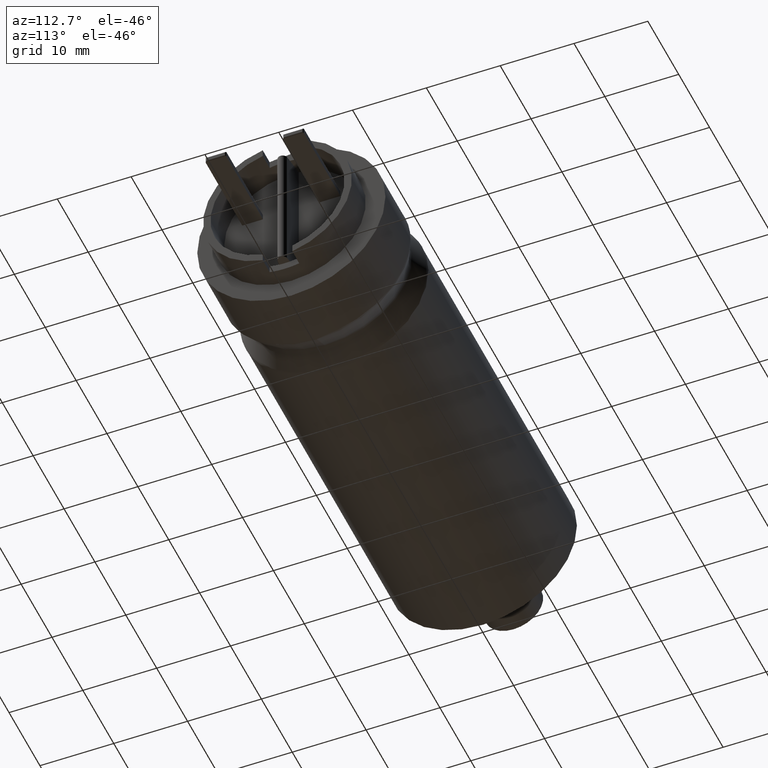
[diagram: clean part render]
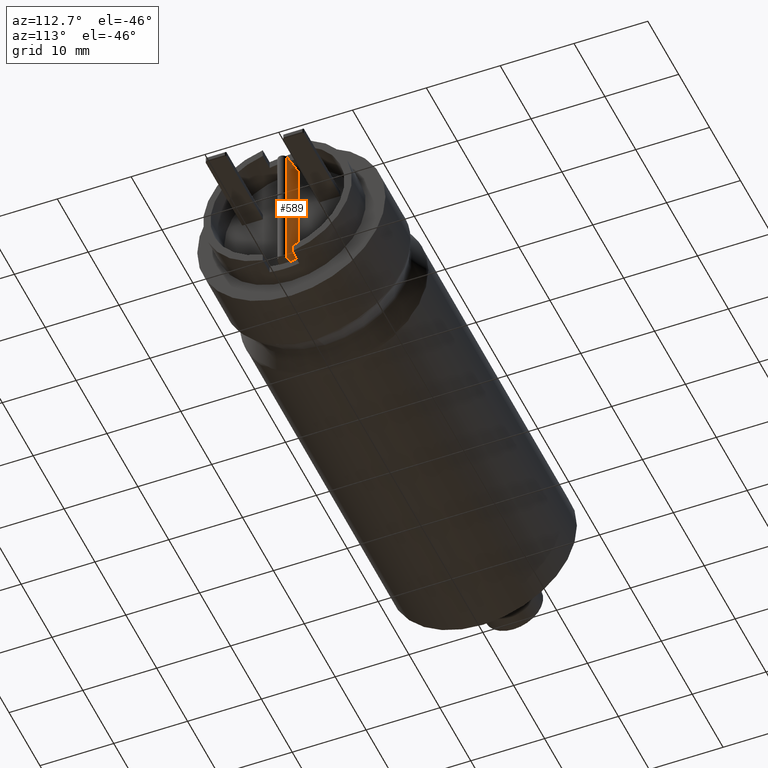
[diagram: same view with one face highlighted and labeled with its STEP entity id]
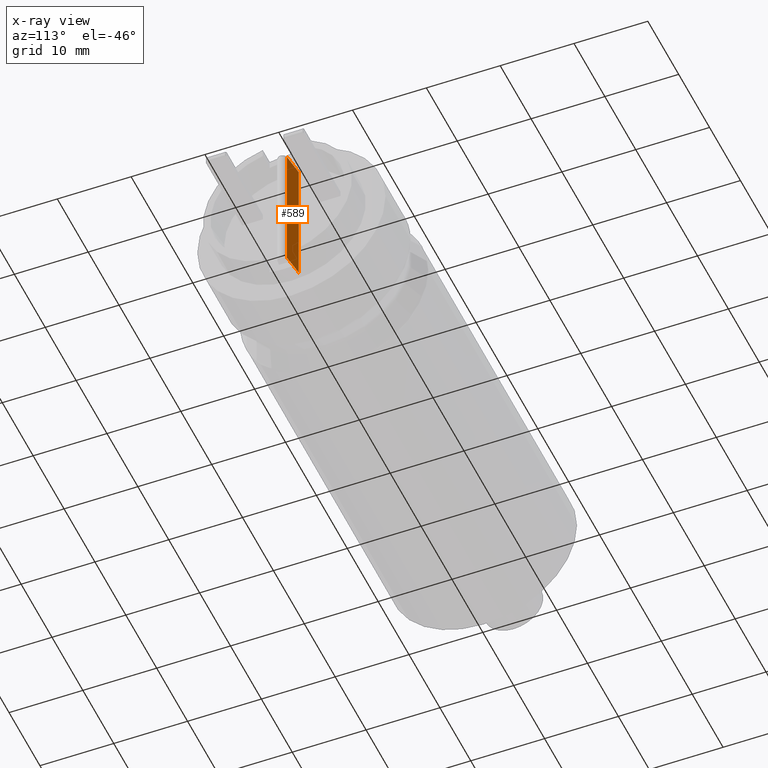
[diagram: x-ray of the same camera — body ghosted, the highlighted face saturated]
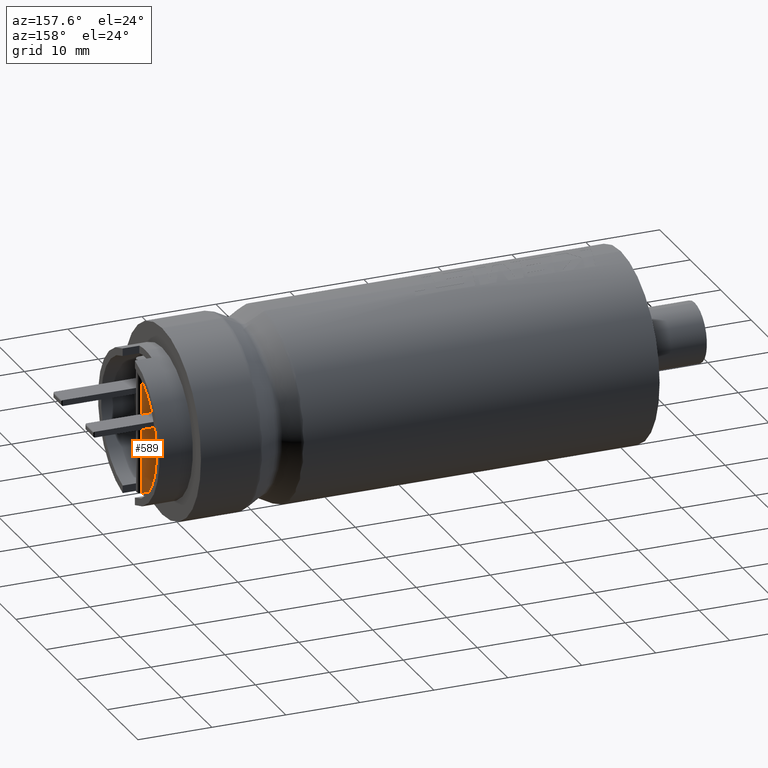
[diagram: same view with one face highlighted and labeled with its STEP entity id]
A machine part, auxiliary view. The second image highlights one B-rep face of the part: STEP entity #589.
The next image is the same camera in x-ray: the body ghosted, the highlighted face saturated — about 0% of this face is hidden behind the body in this view.
A second angle (auxiliary view) of the same face is appended — the face is thin or edge-on in the first view.
In plain terms, the highlighted planar face has unit normal (-0.1159, -0.9933, 0).
Its self-contained STEP definition (entity closure, byte-faithful):
#162 = ORIENTED_EDGE ( 'NONE', *, *, #2198, .T. ) ;
#274 = CARTESIAN_POINT ( 'NONE',  ( 62.00000000000000000, 0.9999999999999995600, -9.032613621759761500 ) ) ;
#284 = ORIENTED_EDGE ( 'NONE', *, *, #6188, .F. ) ;
#315 = VERTEX_POINT ( 'NONE', #3481 ) ;
#439 = DIRECTION ( 'NONE',  ( -0.1158806995601782700, -0.9932631390872429500, 0.0000000000000000000 ) ) ;
#571 = DIRECTION ( 'NONE',  ( -0.0000000000000000000, -0.0000000000000000000, -1.000000000000000000 ) ) ;
#589 = ADVANCED_FACE ( 'NONE', ( #1963 ), #3218, .F. ) ;
#655 = VECTOR ( 'NONE', #4755, 1000.000000000000000 ) ;
#669 = CARTESIAN_POINT ( 'NONE',  ( 64.49990661198681600, 0.7083442286015387800, -9.060199390091749900 ) ) ;
#782 = ORIENTED_EDGE ( 'NONE', *, *, #4665, .T. ) ;
#837 = AXIS2_PLACEMENT_3D ( 'NONE', #2239, #439, #2844 ) ;
#921 = CARTESIAN_POINT ( 'NONE',  ( 64.49990661198681600, 0.7083442286015387800, 9.060199390091749900 ) ) ;
#1250 = CARTESIAN_POINT ( 'NONE',  ( 62.00000000000000000, 0.9999999999999995600, 9.032613621759761500 ) ) ;
#1291 = CARTESIAN_POINT ( 'NONE',  ( 62.00000000000000000, 0.9999999999999995600, -9.032613621759761500 ) ) ;
#1414 = CARTESIAN_POINT ( 'NONE',  ( 65.00000000000000000, 0.6500000000000000200, -9.064524744298514800 ) ) ;
#1553 = CARTESIAN_POINT ( 'NONE',  ( 62.00000000000000000, 0.9999999999999995600, 9.032613621759761500 ) ) ;
#1622 =( BOUNDED_CURVE ( )  B_SPLINE_CURVE ( 3, ( #3079, #669, #6086, #6060 ),
 .UNSPECIFIED., .F., .F. ) 
 B_SPLINE_CURVE_WITH_KNOTS ( ( 4, 4 ),
 ( 1.489554231973549100, 1.499210741083873300 ),
 .UNSPECIFIED. ) 
 CURVE ( )  GEOMETRIC_REPRESENTATION_ITEM ( )  RATIONAL_B_SPLINE_CURVE ( ( 1.000000000000000000, 0.9999922293344126700, 0.9999922293344126700, 1.000000000000000000 ) ) 
 REPRESENTATION_ITEM ( '' )  );
#1849 = VERTEX_POINT ( 'NONE', #5341 ) ;
#1963 = FACE_OUTER_BOUND ( 'NONE', #4276, .T. ) ;
#2192 = CARTESIAN_POINT ( 'NONE',  ( 64.25000000000000000, 0.7375000000000000400, 9.057825489045372400 ) ) ;
#2198 = EDGE_CURVE ( 'NONE', #315, #2962, #5068, .T. ) ;
#2239 = CARTESIAN_POINT ( 'NONE',  ( 62.00000000000000000, 1.000000000000000000, 12.75099999999999800 ) ) ;
#2676 = CARTESIAN_POINT ( 'NONE',  ( 64.25000000000000000, 0.7375000000000000400, 9.057825489045372400 ) ) ;
#2691 = ORIENTED_EDGE ( 'NONE', *, *, #6156, .F. ) ;
#2844 = DIRECTION ( 'NONE',  ( 0.9932631390872428400, -0.1158806995601782500, 0.0000000000000000000 ) ) ;
#2962 = VERTEX_POINT ( 'NONE', #1414 ) ;
#3079 = CARTESIAN_POINT ( 'NONE',  ( 64.25000000000000000, 0.7375000000000000400, -9.057825489045372400 ) ) ;
#3218 = PLANE ( 'NONE',  #837 ) ;
#3481 = CARTESIAN_POINT ( 'NONE',  ( 65.00000000000000000, 0.6499999999999999100, 9.064524744298514800 ) ) ;
#3515 = ORIENTED_EDGE ( 'NONE', *, *, #4446, .T. ) ;
#3575 = ORIENTED_EDGE ( 'NONE', *, *, #5222, .F. ) ;
#3783 =( BOUNDED_CURVE ( )  B_SPLINE_CURVE ( 3, ( #1250, #6099, #4677, #2676 ),
 .UNSPECIFIED., .F., .T. ) 
 B_SPLINE_CURVE_WITH_KNOTS ( ( 4, 4 ),
 ( 1.460535414091262100, 1.489554231973549100 ),
 .UNSPECIFIED. ) 
 CURVE ( )  GEOMETRIC_REPRESENTATION_ITEM ( )  RATIONAL_B_SPLINE_CURVE ( ( 1.000000000000000000, 0.9999298269151595300, 0.9999298269151595300, 1.000000000000000000 ) ) 
 REPRESENTATION_ITEM ( '' )  );
#3903 = CARTESIAN_POINT ( 'NONE',  ( 65.00000000000000000, 0.6499999999999999100, 9.064524744298514800 ) ) ;
#3925 = VERTEX_POINT ( 'NONE', #274 ) ;
#4183 = CARTESIAN_POINT ( 'NONE',  ( 64.25000000000000000, 0.7375000000000000400, -9.057825489045372400 ) ) ;
#4262 = CARTESIAN_POINT ( 'NONE',  ( 62.00000000000000000, 1.000000000000000000, 12.75099999999999800 ) ) ;
#4276 = EDGE_LOOP ( 'NONE', ( #2691, #3515, #782, #162, #3575, #284 ) ) ;
#4365 = LINE ( 'NONE', #4262, #655 ) ;
#4446 = EDGE_CURVE ( 'NONE', #5615, #5925, #3783, .T. ) ;
#4612 = VECTOR ( 'NONE', #571, 1000.000000000000000 ) ;
#4665 = EDGE_CURVE ( 'NONE', #5925, #315, #5384, .T. ) ;
#4677 = CARTESIAN_POINT ( 'NONE',  ( 63.49898111067239600, 0.8251188704215537400, 9.050691446000048000 ) ) ;
#4679 =( BOUNDED_CURVE ( )  B_SPLINE_CURVE ( 3, ( #1291, #6117, #5218, #4183 ),
 .UNSPECIFIED., .F., .T. ) 
 B_SPLINE_CURVE_WITH_KNOTS ( ( 4, 4 ),
 ( 1.460535414091262100, 1.489554231973549100 ),
 .UNSPECIFIED. ) 
 CURVE ( )  GEOMETRIC_REPRESENTATION_ITEM ( )  RATIONAL_B_SPLINE_CURVE ( ( 1.000000000000000000, 0.9999298269151595300, 0.9999298269151595300, 1.000000000000000000 ) ) 
 REPRESENTATION_ITEM ( '' )  );
#4755 = DIRECTION ( 'NONE',  ( -0.0000000000000000000, -0.0000000000000000000, -1.000000000000000000 ) ) ;
#5068 = LINE ( 'NONE', #5414, #4612 ) ;
#5218 = CARTESIAN_POINT ( 'NONE',  ( 63.49898111067239600, 0.8251188704215537400, -9.050691446000048000 ) ) ;
#5222 = EDGE_CURVE ( 'NONE', #1849, #2962, #1622, .T. ) ;
#5287 = CARTESIAN_POINT ( 'NONE',  ( 64.25000000000000000, 0.7375000000000000400, 9.057825489045372400 ) ) ;
#5341 = CARTESIAN_POINT ( 'NONE',  ( 64.25000000000000000, 0.7375000000000000400, -9.057825489045372400 ) ) ;
#5384 =( BOUNDED_CURVE ( )  B_SPLINE_CURVE ( 3, ( #5287, #921, #5830, #3903 ),
 .UNSPECIFIED., .F., .F. ) 
 B_SPLINE_CURVE_WITH_KNOTS ( ( 4, 4 ),
 ( 1.489554231973549100, 1.499210741083873300 ),
 .UNSPECIFIED. ) 
 CURVE ( )  GEOMETRIC_REPRESENTATION_ITEM ( )  RATIONAL_B_SPLINE_CURVE ( ( 1.000000000000000000, 0.9999922293344126700, 0.9999922293344126700, 1.000000000000000000 ) ) 
 REPRESENTATION_ITEM ( '' )  );
#5414 = CARTESIAN_POINT ( 'NONE',  ( 65.00000000000000000, 0.6500000000000001300, 12.75099999999999800 ) ) ;
#5615 = VERTEX_POINT ( 'NONE', #1553 ) ;
#5830 = CARTESIAN_POINT ( 'NONE',  ( 64.74990855466832300, 0.6791773352886971700, 9.062432492528824200 ) ) ;
#5925 = VERTEX_POINT ( 'NONE', #2192 ) ;
#6060 = CARTESIAN_POINT ( 'NONE',  ( 65.00000000000000000, 0.6500000000000000200, -9.064524744298514800 ) ) ;
#6086 = CARTESIAN_POINT ( 'NONE',  ( 64.74990855466832300, 0.6791773352886971700, -9.062432492528824200 ) ) ;
#6099 = CARTESIAN_POINT ( 'NONE',  ( 62.74892847716531500, 0.9126250109973805800, 9.042286900465288800 ) ) ;
#6117 = CARTESIAN_POINT ( 'NONE',  ( 62.74892847716531500, 0.9126250109973805800, -9.042286900465288800 ) ) ;
#6156 = EDGE_CURVE ( 'NONE', #5615, #3925, #4365, .T. ) ;
#6188 = EDGE_CURVE ( 'NONE', #3925, #1849, #4679, .T. ) ;